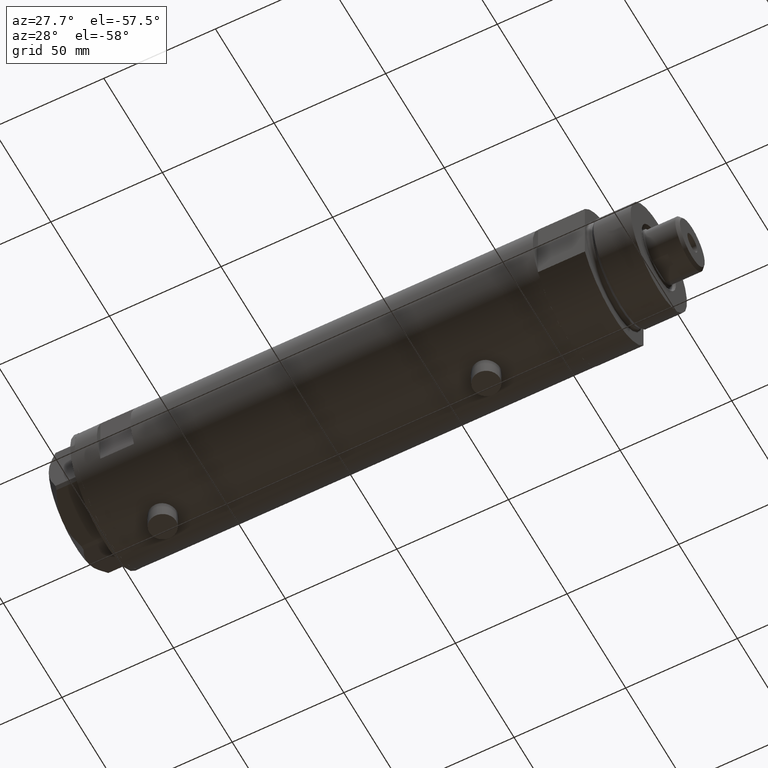
[diagram: clean part render]
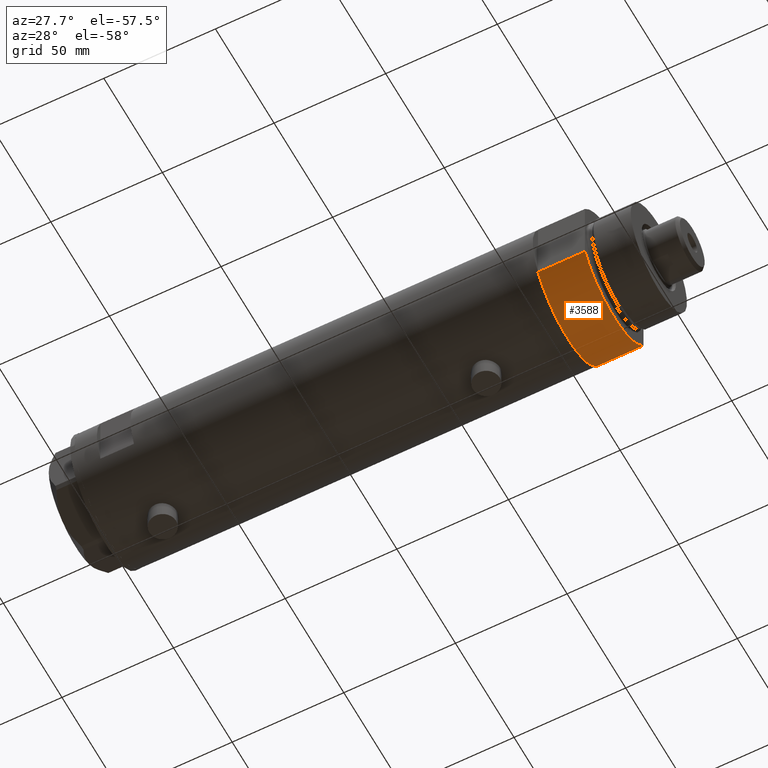
[diagram: same view with one face highlighted and labeled with its STEP entity id]
A machine part, auxiliary view. The second image highlights one B-rep face of the part: STEP entity #3588.
In plain terms, the highlighted cylindrical surface (partial cylindrical patch) has radius 29.5 mm, axis along (-1, -0, 0).
Its self-contained STEP definition (entity closure, byte-faithful):
#213 = DIRECTION ( 'NONE',  ( -0.000000000000000000, -0.000000000000000000, 1.000000000000000000 ) ) ;
#322 = LINE ( 'NONE', #4000, #2490 ) ;
#495 = EDGE_LOOP ( 'NONE', ( #859, #2622, #2993, #842 ) ) ;
#557 = CARTESIAN_POINT ( 'NONE',  ( 15.66045976336583045, -25.00000000000000000, 21.00000000000000355 ) ) ;
#691 = CARTESIAN_POINT ( 'NONE',  ( 0.000000000000000000, 0.000000000000000000, 21.00000000000000000 ) ) ;
#723 = VERTEX_POINT ( 'NONE', #1567 ) ;
#842 = ORIENTED_EDGE ( 'NONE', *, *, #3780, .T. ) ;
#859 = ORIENTED_EDGE ( 'NONE', *, *, #2804, .F. ) ;
#1001 = DIRECTION ( 'NONE',  ( -0.000000000000000000, -0.000000000000000000, 1.000000000000000000 ) ) ;
#1108 = FACE_OUTER_BOUND ( 'NONE', #495, .T. ) ;
#1126 = AXIS2_PLACEMENT_3D ( 'NONE', #691, #1136, #2028 ) ;
#1136 = DIRECTION ( 'NONE',  ( -0.000000000000000000, -0.000000000000000000, -1.000000000000000000 ) ) ;
#1230 = CARTESIAN_POINT ( 'NONE',  ( 0.000000000000000000, 0.000000000000000000, 21.00000000000000000 ) ) ;
#1331 = EDGE_CURVE ( 'NONE', #723, #2849, #1398, .T. ) ;
#1398 = CIRCLE ( 'NONE', #2115, 29.50000000000000355 ) ;
#1518 = DIRECTION ( 'NONE',  ( 1.000000000000000000, 0.000000000000000000, 0.000000000000000000 ) ) ;
#1567 = CARTESIAN_POINT ( 'NONE',  ( 15.66045976336583401, -25.00000000000000000, 0.000000000000000000 ) ) ;
#1865 = CARTESIAN_POINT ( 'NONE',  ( 15.66045976336583401, 25.00000000000000000, 0.000000000000000000 ) ) ;
#2028 = DIRECTION ( 'NONE',  ( -1.000000000000000000, 0.000000000000000000, 0.000000000000000000 ) ) ;
#2115 = AXIS2_PLACEMENT_3D ( 'NONE', #2765, #2433, #3801 ) ;
#2124 = AXIS2_PLACEMENT_3D ( 'NONE', #1230, #3297, #1518 ) ;
#2182 = CARTESIAN_POINT ( 'NONE',  ( 15.66045976336582690, 25.00000000000000000, 0.000000000000000000 ) ) ;
#2199 = CIRCLE ( 'NONE', #2124, 29.50000000000000355 ) ;
#2258 = VERTEX_POINT ( 'NONE', #2696 ) ;
#2433 = DIRECTION ( 'NONE',  ( 0.000000000000000000, 0.000000000000000000, 1.000000000000000000 ) ) ;
#2490 = VECTOR ( 'NONE', #1001, 1000.000000000000000 ) ;
#2622 = ORIENTED_EDGE ( 'NONE', *, *, #3250, .F. ) ;
#2696 = CARTESIAN_POINT ( 'NONE',  ( 15.66045976336583045, 24.99999999999999645, 20.99999999999999645 ) ) ;
#2765 = CARTESIAN_POINT ( 'NONE',  ( 0.000000000000000000, 0.000000000000000000, 0.000000000000000000 ) ) ;
#2804 = EDGE_CURVE ( 'NONE', #3183, #2258, #2199, .T. ) ;
#2849 = VERTEX_POINT ( 'NONE', #2182 ) ;
#2993 = ORIENTED_EDGE ( 'NONE', *, *, #1331, .T. ) ;
#3183 = VERTEX_POINT ( 'NONE', #557 ) ;
#3250 = EDGE_CURVE ( 'NONE', #723, #3183, #322, .T. ) ;
#3297 = DIRECTION ( 'NONE',  ( 0.000000000000000000, 0.000000000000000000, 1.000000000000000000 ) ) ;
#3300 = LINE ( 'NONE', #1865, #3787 ) ;
#3588 = ADVANCED_FACE ( 'NONE', ( #1108 ), #3857, .T. ) ;
#3780 = EDGE_CURVE ( 'NONE', #2849, #2258, #3300, .T. ) ;
#3787 = VECTOR ( 'NONE', #213, 1000.000000000000000 ) ;
#3801 = DIRECTION ( 'NONE',  ( 1.000000000000000000, 0.000000000000000000, 0.000000000000000000 ) ) ;
#3857 = CYLINDRICAL_SURFACE ( 'NONE', #1126, 29.50000000000000355 ) ;
#4000 = CARTESIAN_POINT ( 'NONE',  ( 15.66045976336583401, -25.00000000000000000, 0.000000000000000000 ) ) ;